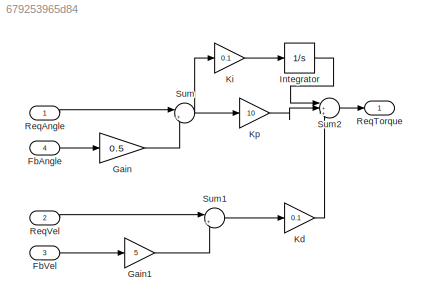
MODEL slx_679253965d84
KIND model
CONFIG AbsTol = auto
CONFIG EnableMultiTasking = off
CONFIG FixedStep = auto
CONFIG MaxStep = auto
CONFIG MinStep = auto
CONFIG RelTol = 1e-3
CONFIG SampleTimeConstraint = Unconstrained
CONFIG SolverName = VariableStepAuto
CONFIG StartTime = 0.0
CONFIG StopTime = 10.0
BLOCK [Inport] FbAngle
  Port = 4
BLOCK [Inport] FbVel
  Port = 3
BLOCK [Gain] Gain
  Gain = 0.5
BLOCK [Gain] Gain1
  Gain = 5
BLOCK [Integrator] Integrator
BLOCK [Gain] Kd
  Gain = 0.1
BLOCK [Gain] Ki
  Gain = 0.1
BLOCK [Gain] Kp
  Gain = 10
BLOCK [Inport] ReqAngle
BLOCK [Outport] ReqTorque
BLOCK [Inport] ReqVel
  Port = 2
BLOCK [Sum] Sum
  Inputs = |+-
BLOCK [Sum] Sum1
  Inputs = |+-
BLOCK [Sum] Sum2
  Inputs = |+++
LINE FbAngle:1 -> Gain:1
LINE FbVel:1 -> Gain1:1
LINE Gain1:1 -> Sum1:2
LINE Gain:1 -> Sum:2
LINE Integrator:1 -> Sum2:1
LINE Kd:1 -> Sum2:3
LINE Ki:1 -> Integrator:1
LINE Kp:1 -> Sum2:2
LINE ReqAngle:1 -> Sum:1
LINE ReqVel:1 -> Sum1:1
LINE Sum1:1 -> Kd:1
LINE Sum2:1 -> ReqTorque:1
NET Sum:1 -> Ki:1, Kp:1
note: NET lines group one-source signal fan-out (src -> all destinations, sorted); 1:1 wires keep LINE
